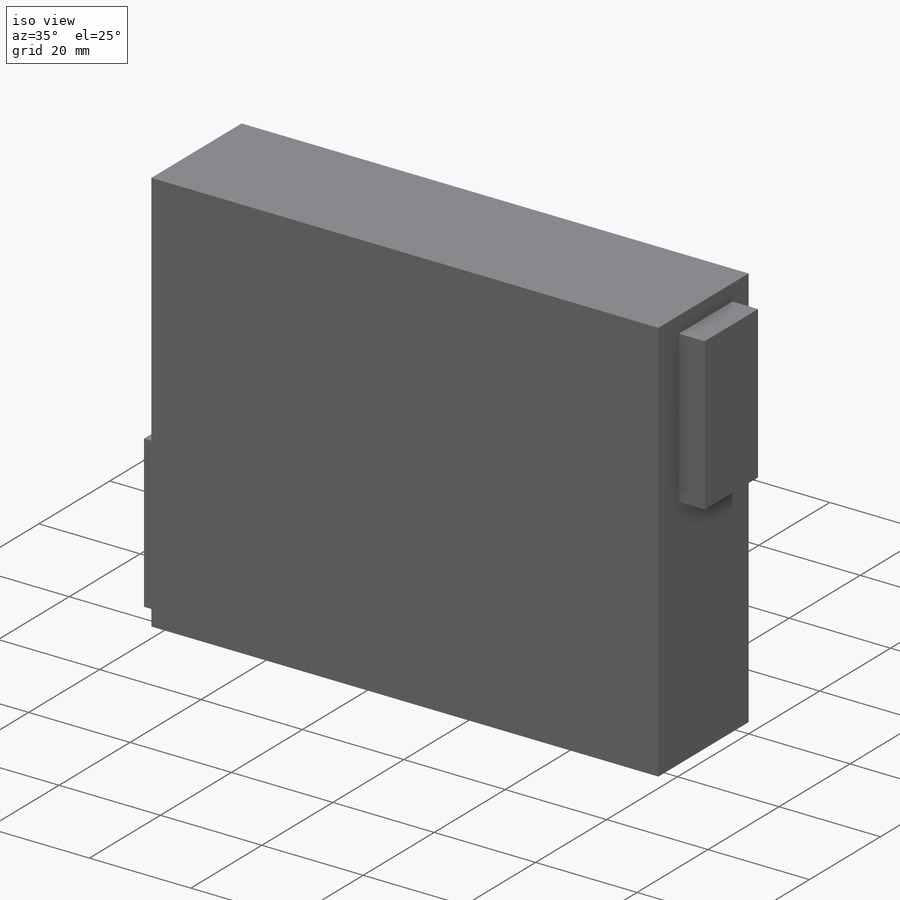
[diagram: iso view]
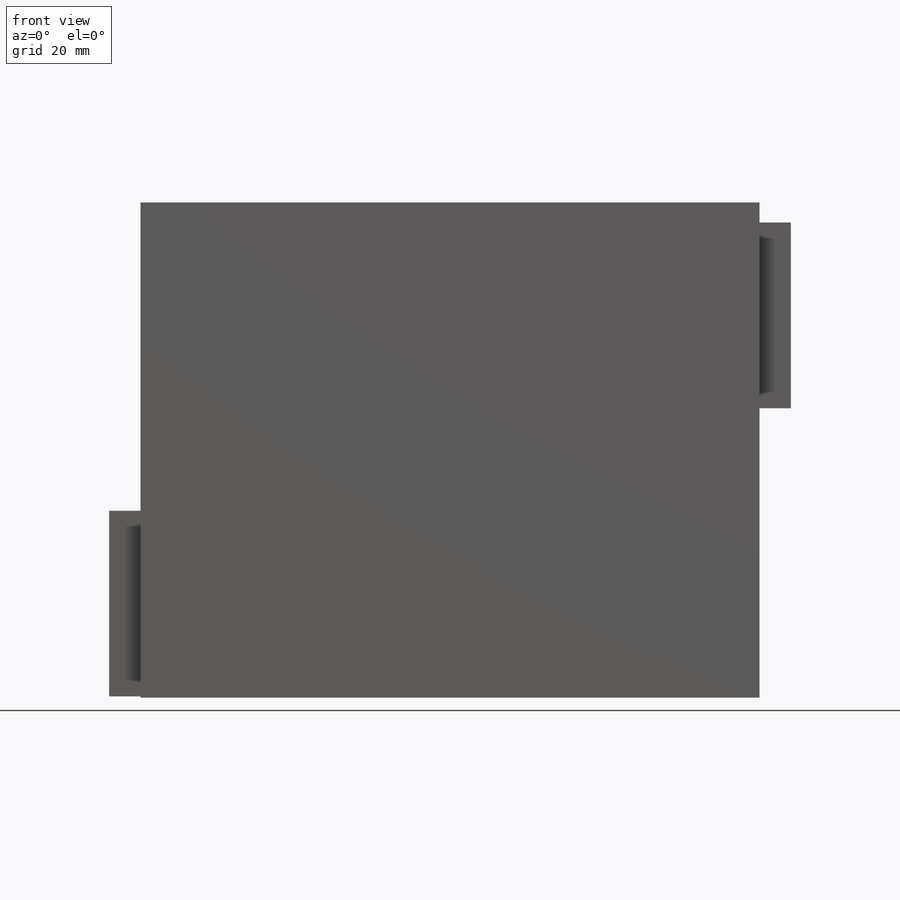
[diagram: front view]
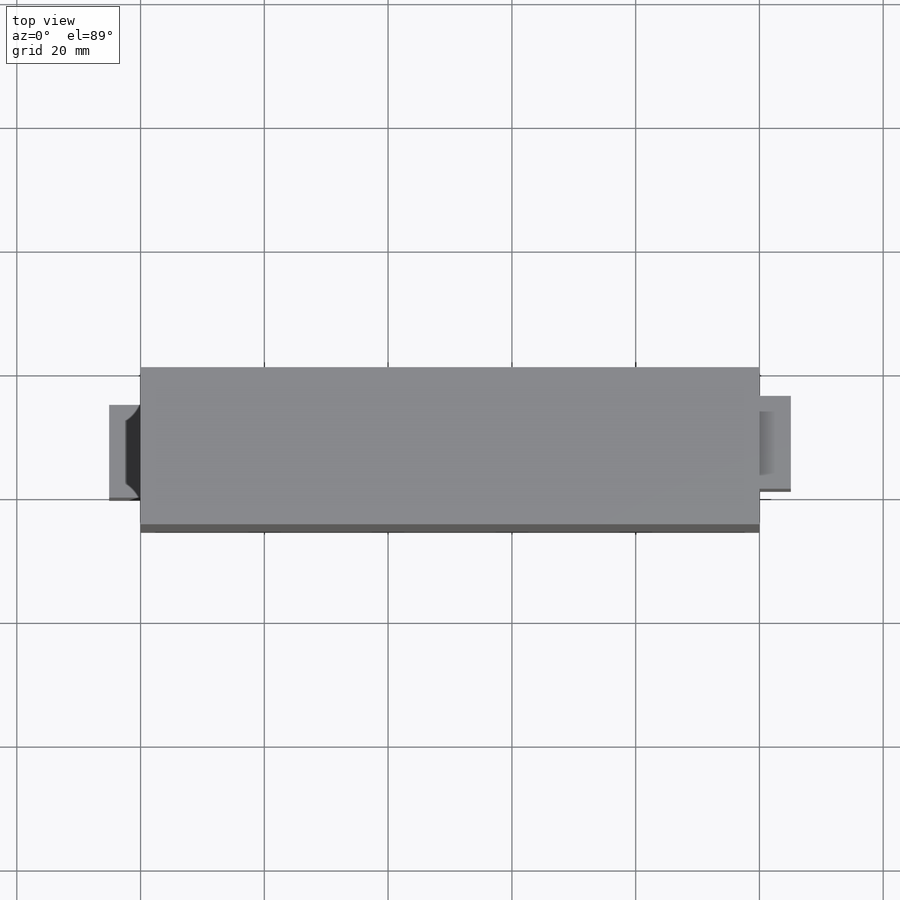
[diagram: top view]
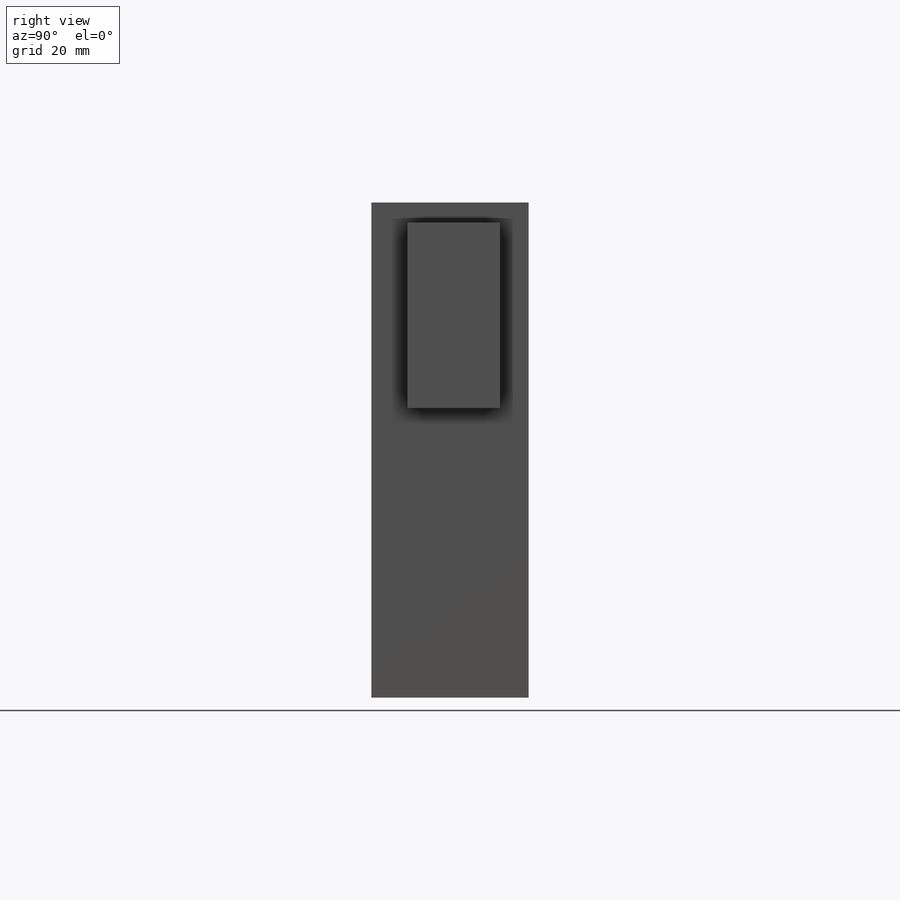
[diagram: right view]
SOLIDWORKS PART (.sldprt)
format: sldprt  version: not decoded by parser v0  size: 140,800 bytes
history: native  units: mm
features: sketch x5, extrude x3, cut_extrude x2, material x1 (+11 scaffold rows collapsed)
feature tree (22):
  scaffold x11  (default folders/planes/origin — collapsed)
  material  "Material <not specified>"
  sketch  "Sketch2"
  extrude  "Boss-Extrude2"  Depth=25.4mm
  sketch  "Sketch3"  dims[D1=15.0mm]
  cut_extrude  "Cut-Extrude1"  Depth=10.922mm
  sketch  "Sketch4"  dims[D1=15.0mm]
  cut_extrude  "Cut-Extrude2"  Depth=10.922mm
  extrude  "Boss-Extrude3"  [1 undecoded]
  sketch  "Sketch3<2>"  dims[D1=5.08mm]
  extrude  "Boss-Extrude4"  [1 undecoded]
  sketch  "Sketch4<2>"  dims[D1=5.08mm]
decode coverage: 7 of 10 modeling features carry decoded parameters
note: 2 parameter values undecoded
note: suppression state not decoded; provenance and decode notes live in map.json
